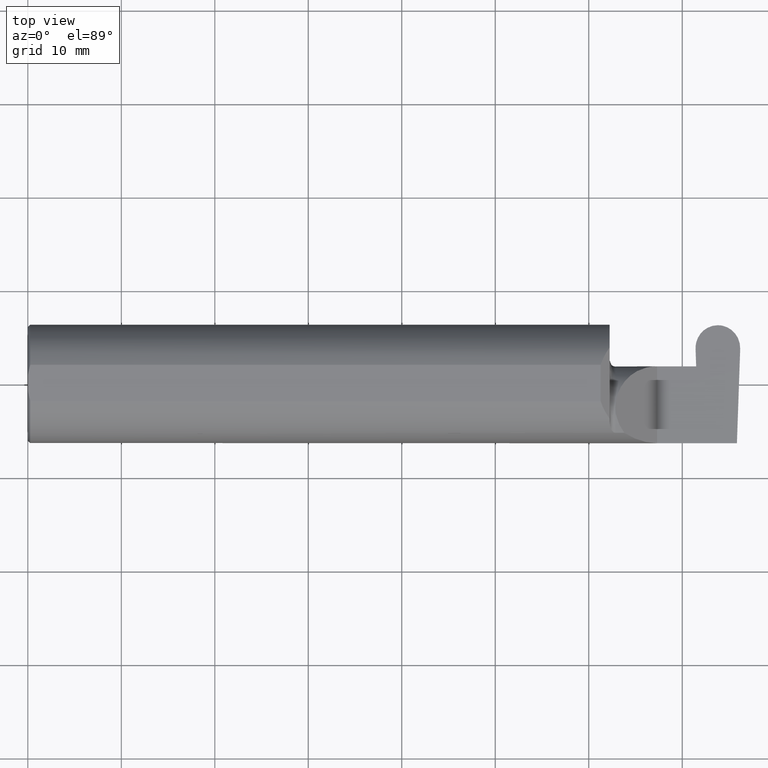
[diagram: clean part render]
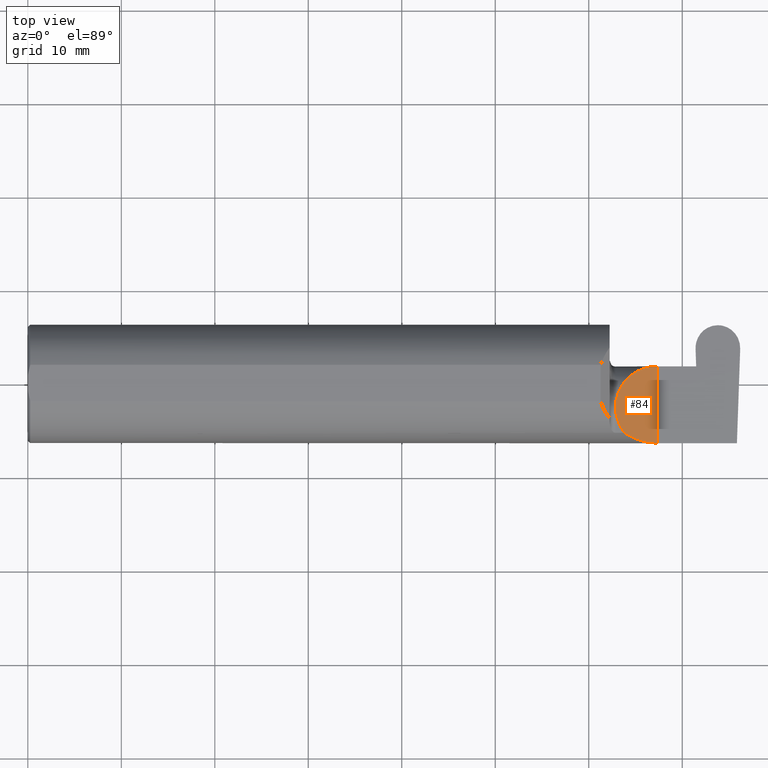
[diagram: same view with one face highlighted and labeled with its STEP entity id]
A machine part, top view. The second image highlights one B-rep face of the part: STEP entity #84.
In plain terms, the highlighted planar face has unit normal (-0.7071, 0, -0.7071).
Its self-contained STEP definition (entity closure, byte-faithful):
#13 = CARTESIAN_POINT ( 'NONE',  ( 2.650000000000000355, -0.2500000000000000555, 4.286263797015729199E-17 ) ) ;
#19 = VECTOR ( 'NONE', #697, 39.37007874015748143 ) ;
#83 =( BOUNDED_CURVE ( )  B_SPLINE_CURVE ( 3, ( #261, #770, #644, #85 ),
 .UNSPECIFIED., .F., .T. ) 
 B_SPLINE_CURVE_WITH_KNOTS ( ( 4, 4 ),
 ( 4.712388980384689674, 5.298966915116348986 ),
 .UNSPECIFIED. ) 
 CURVE ( )  GEOMETRIC_REPRESENTATION_ITEM ( )  RATIONAL_B_SPLINE_CURVE ( ( 1.000000000000000000, 0.9715321379117536349, 0.9715321379117536349, 1.000000000000000000 ) ) 
 REPRESENTATION_ITEM ( '' )  );
#84 = ADVANCED_FACE ( 'NONE', ( #103 ), #673, .F. ) ;
#85 = CARTESIAN_POINT ( 'NONE',  ( 2.511704467739031887, -0.2080850024789288322, 0.1382955322609670801 ) ) ;
#89 = VERTEX_POINT ( 'NONE', #291 ) ;
#103 = FACE_OUTER_BOUND ( 'NONE', #708, .T. ) ;
#149 = CARTESIAN_POINT ( 'NONE',  ( 2.650000000000000355, 0.07414999999999984104, 4.286263797015729199E-17 ) ) ;
#152 = CARTESIAN_POINT ( 'NONE',  ( 2.650000000000000355, 0.07414999999999984104, 4.286263797015729199E-17 ) ) ;
#198 = ORIENTED_EDGE ( 'NONE', *, *, #260, .F. ) ;
#213 = CARTESIAN_POINT ( 'NONE',  ( 2.475000000000000089, -0.1008500000000001895, 0.1749999999999984346 ) ) ;
#245 = CARTESIAN_POINT ( 'NONE',  ( 2.474999999999998757, -0.1400387324517231580, 0.1750000000000000444 ) ) ;
#260 = EDGE_CURVE ( 'NONE', #89, #769, #286, .T. ) ;
#261 = CARTESIAN_POINT ( 'NONE',  ( 2.650000000000000355, -0.2498499999999999610, 4.286263797015729199E-17 ) ) ;
#284 = CARTESIAN_POINT ( 'NONE',  ( 2.650000000000000355, -0.2500000000000000555, 4.286263797015729199E-17 ) ) ;
#286 =( BOUNDED_CURVE ( )  B_SPLINE_CURVE ( 3, ( #688, #555, #245, #425 ),
 .UNSPECIFIED., .F., .F. ) 
 B_SPLINE_CURVE_WITH_KNOTS ( ( 4, 4 ),
 ( 5.623622464215682903, 6.283185307179586232 ),
 .UNSPECIFIED. ) 
 CURVE ( )  GEOMETRIC_REPRESENTATION_ITEM ( )  RATIONAL_B_SPLINE_CURVE ( ( 1.000000000000000000, 0.9640754331822833922, 0.9640754331822833922, 1.000000000000000000 ) ) 
 REPRESENTATION_ITEM ( '' )  );
#291 = CARTESIAN_POINT ( 'NONE',  ( 2.511704467739031887, -0.2080850024789288322, 0.1382955322609670801 ) ) ;
#299 =( BOUNDED_CURVE ( )  B_SPLINE_CURVE ( 3, ( #388, #656, #713, #149 ),
 .UNSPECIFIED., .F., .F. ) 
 B_SPLINE_CURVE_WITH_KNOTS ( ( 4, 4 ),
 ( 0.000000000000000000, 1.570796326794896780 ),
 .UNSPECIFIED. ) 
 CURVE ( )  GEOMETRIC_REPRESENTATION_ITEM ( )  RATIONAL_B_SPLINE_CURVE ( ( 1.000000000000000000, 0.8047378541243649375, 0.8047378541243649375, 1.000000000000000000 ) ) 
 REPRESENTATION_ITEM ( '' )  );
#364 = DIRECTION ( 'NONE',  ( -0.7071067811865439090, 0.000000000000000000, -0.7071067811865511255 ) ) ;
#369 = ORIENTED_EDGE ( 'NONE', *, *, #606, .T. ) ;
#388 = CARTESIAN_POINT ( 'NONE',  ( 2.475000000000000089, -0.1008500000000001895, 0.1749999999999984346 ) ) ;
#404 = VERTEX_POINT ( 'NONE', #152 ) ;
#406 = EDGE_CURVE ( 'NONE', #769, #404, #299, .T. ) ;
#425 = CARTESIAN_POINT ( 'NONE',  ( 2.475000000000000089, -0.1008500000000001895, 0.1749999999999984346 ) ) ;
#481 = CARTESIAN_POINT ( 'NONE',  ( 2.650000000000000355, -0.2498499999999999610, 4.286263797015729199E-17 ) ) ;
#533 = VERTEX_POINT ( 'NONE', #481 ) ;
#555 = CARTESIAN_POINT ( 'NONE',  ( 2.487690731615565642, -0.1771157075472508391, 0.1623092683844332140 ) ) ;
#559 = AXIS2_PLACEMENT_3D ( 'NONE', #284, #364, #676 ) ;
#573 = ORIENTED_EDGE ( 'NONE', *, *, #731, .F. ) ;
#606 = EDGE_CURVE ( 'NONE', #533, #404, #753, .T. ) ;
#644 = CARTESIAN_POINT ( 'NONE',  ( 2.552984868485331571, -0.2355204011147991605, 0.09701513151466779894 ) ) ;
#646 = ORIENTED_EDGE ( 'NONE', *, *, #406, .F. ) ;
#656 = CARTESIAN_POINT ( 'NONE',  ( 2.474999999999998757, 0.001662626584708217772, 0.1750000000000000999 ) ) ;
#673 = PLANE ( 'NONE',  #559 ) ;
#676 = DIRECTION ( 'NONE',  ( -0.7071067811865511255, 0.000000000000000000, 0.7071067811865439090 ) ) ;
#688 = CARTESIAN_POINT ( 'NONE',  ( 2.511704467739031887, -0.2080850024789288322, 0.1382955322609670801 ) ) ;
#697 = DIRECTION ( 'NONE',  ( -0.000000000000000000, 1.000000000000000000, -0.000000000000000000 ) ) ;
#708 = EDGE_LOOP ( 'NONE', ( #646, #198, #573, #369 ) ) ;
#713 = CARTESIAN_POINT ( 'NONE',  ( 2.547487373415291412, 0.07414999999999992430, 0.1025126265847084439 ) ) ;
#731 = EDGE_CURVE ( 'NONE', #533, #89, #83, .T. ) ;
#753 = LINE ( 'NONE', #13, #19 ) ;
#769 = VERTEX_POINT ( 'NONE', #213 ) ;
#770 = CARTESIAN_POINT ( 'NONE',  ( 2.600434159100402987, -0.2498499999999999610, 0.04956584089959713973 ) ) ;